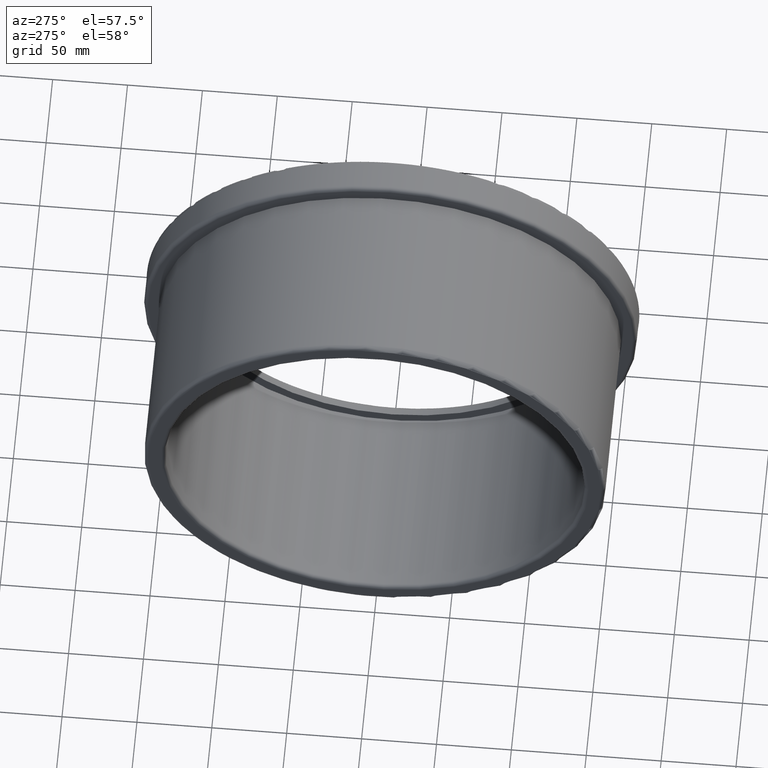
[diagram: clean part render]
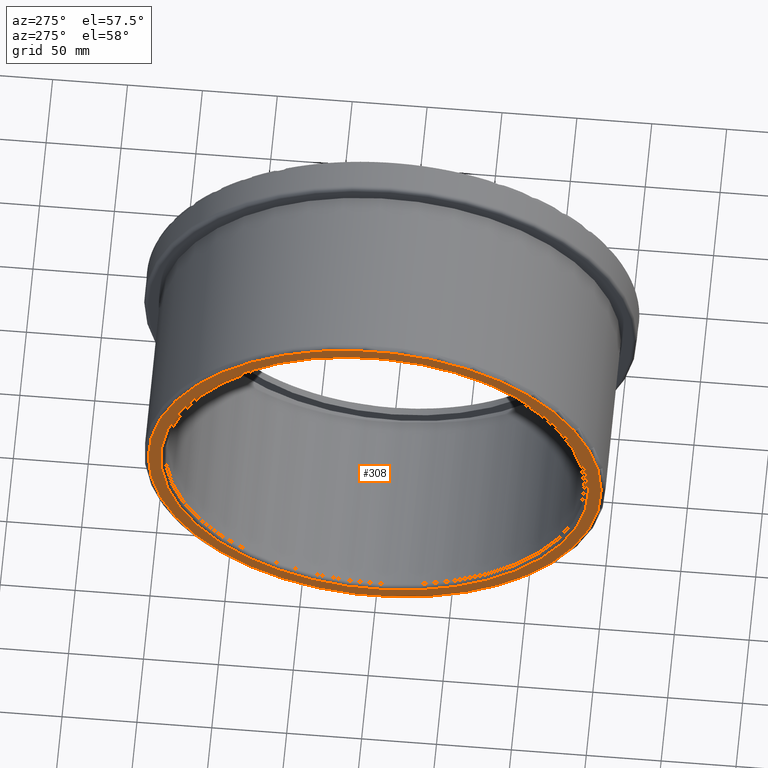
[diagram: same view with one face highlighted and labeled with its STEP entity id]
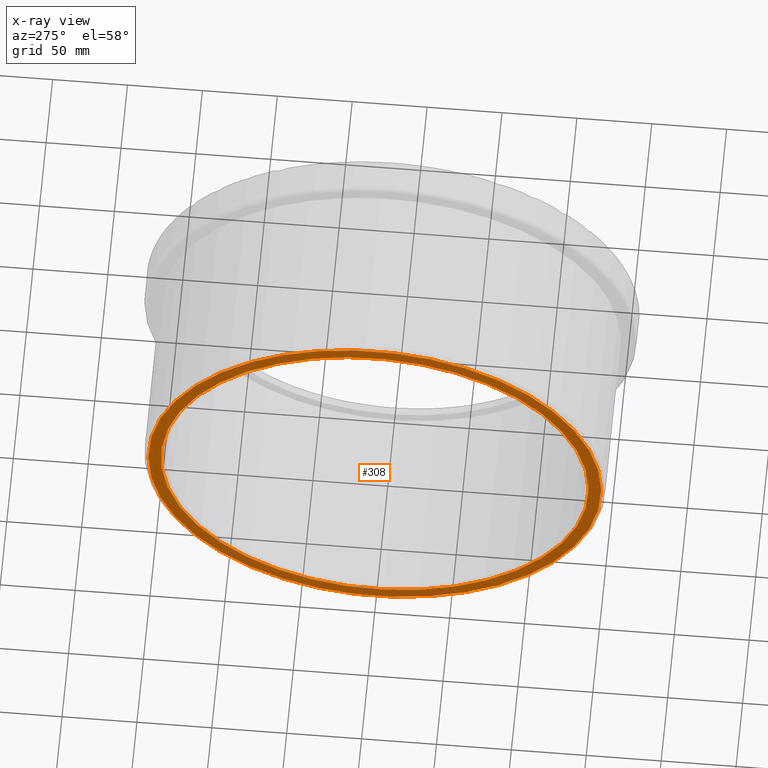
[diagram: x-ray of the same camera — body ghosted, the highlighted face saturated]
A machine part, auxiliary view. The second image highlights one B-rep face of the part: STEP entity #308.
The next image is the same camera in x-ray: the body ghosted, the highlighted face saturated — about 0% of this face is hidden behind the body in this view.
In plain terms, the highlighted planar face has unit normal (-1, 0, 0).
Its self-contained STEP definition (entity closure, byte-faithful):
#38=PLANE('',#346);
#52=FACE_BOUND('',#115,.T.);
#77=FACE_OUTER_BOUND('',#114,.T.);
#114=EDGE_LOOP('',(#253));
#115=EDGE_LOOP('',(#254));
#150=CIRCLE('',#344,142.8);
#152=CIRCLE('',#347,151.2);
#176=VERTEX_POINT('',#1903);
#178=VERTEX_POINT('',#1908);
#206=EDGE_CURVE('',#176,#176,#150,.T.);
#208=EDGE_CURVE('',#178,#178,#152,.T.);
#253=ORIENTED_EDGE('',*,*,#208,.F.);
#254=ORIENTED_EDGE('',*,*,#206,.F.);
#308=ADVANCED_FACE('',(#77,#52),#38,.T.);
#344=AXIS2_PLACEMENT_3D('',#1904,#410,#411);
#346=AXIS2_PLACEMENT_3D('',#1907,#414,#415);
#347=AXIS2_PLACEMENT_3D('',#1909,#416,#417);
#410=DIRECTION('center_axis',(-1.,0.,0.));
#411=DIRECTION('ref_axis',(0.,1.,6.12323399573677E-17));
#414=DIRECTION('center_axis',(-1.,0.,0.));
#415=DIRECTION('ref_axis',(0.,0.,1.));
#416=DIRECTION('center_axis',(1.,0.,0.));
#417=DIRECTION('ref_axis',(0.,1.,6.12323399573677E-17));
#1903=CARTESIAN_POINT('',(0.,-142.8,8.7439781459121E-15));
#1904=CARTESIAN_POINT('Origin',(0.,0.,0.));
#1907=CARTESIAN_POINT('Origin',(0.,-140.,0.));
#1908=CARTESIAN_POINT('',(0.,-151.2,-2.7774989404662E-14));
#1909=CARTESIAN_POINT('Origin',(0.,0.,0.));